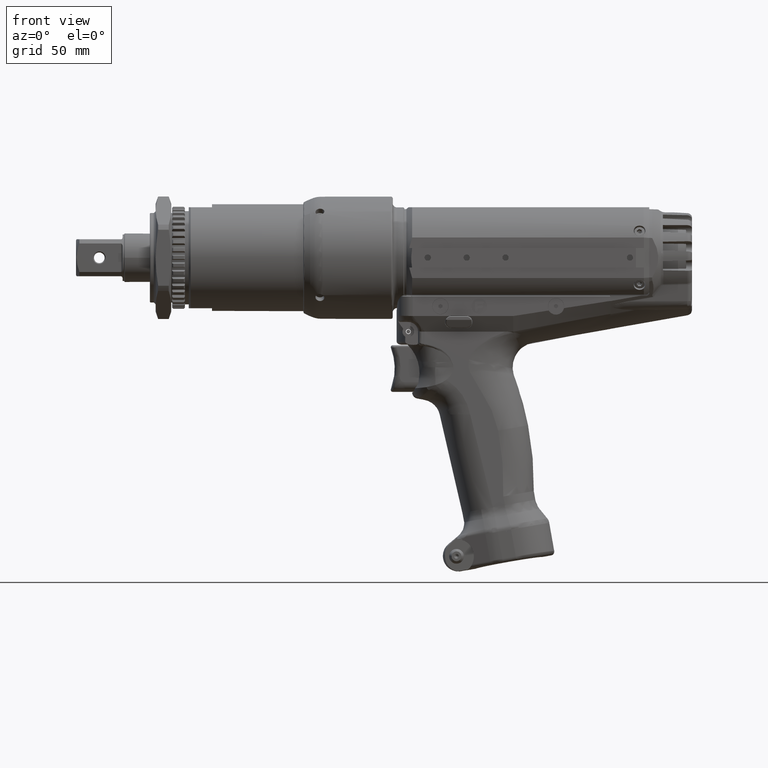
[diagram: clean part render]
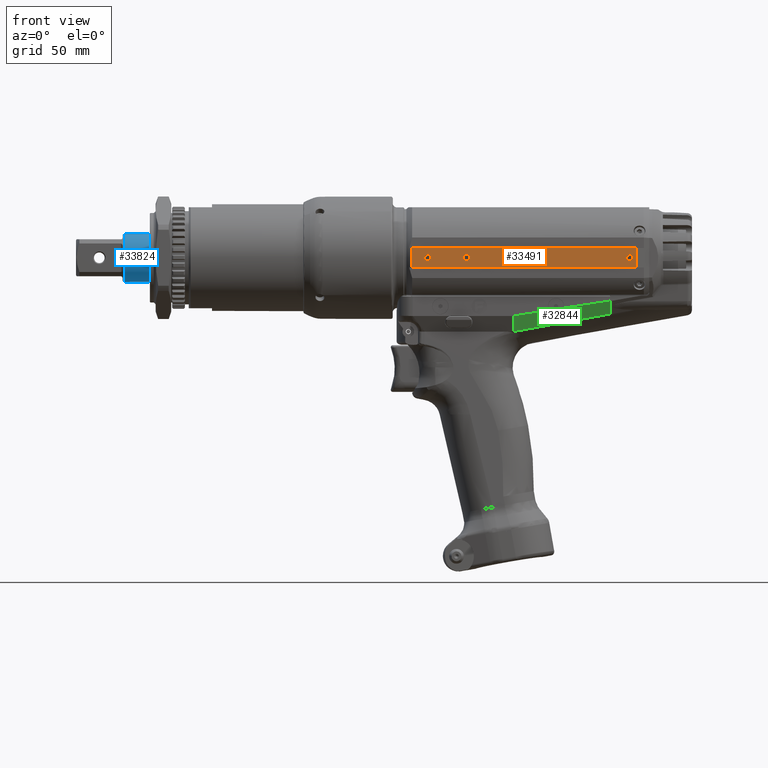
[diagram: same view with three faces highlighted in distinct colors, each labeled with its STEP entity id]
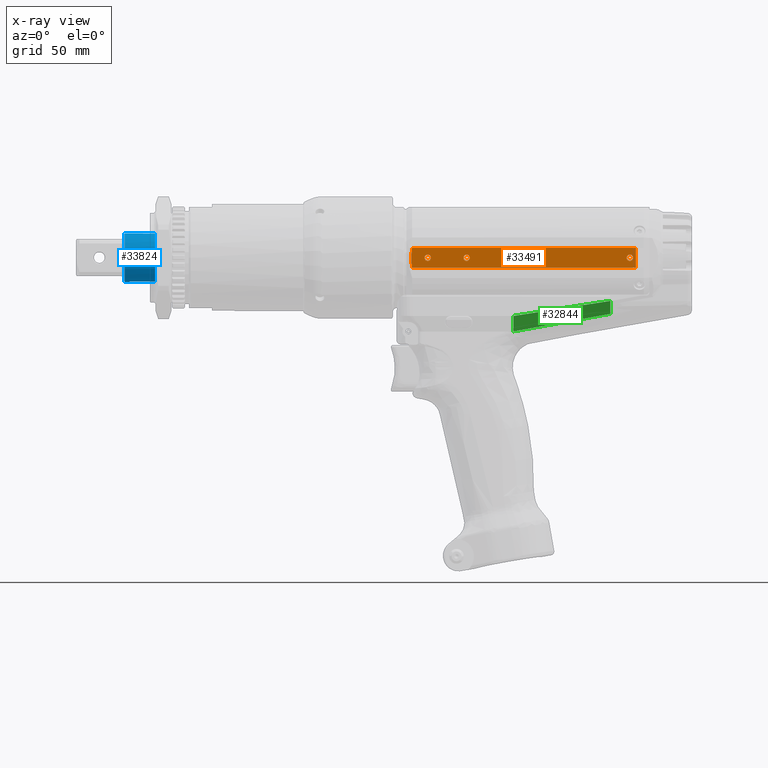
[diagram: x-ray of the same camera — body ghosted, the three highlighted faces saturated]
A machine part, front view with three faces highlighted in distinct colors.
The next image is the same camera in x-ray (body ghosted, the three faces saturated) — at least one of them is partly hidden behind the body in this view.
Their STEP definitions:

[orange] entity #33491 — the highlighted planar face has unit normal (0, -1, 0).
#630=FACE_BOUND('',#9068,.T.);
#631=FACE_BOUND('',#9069,.T.);
#632=FACE_BOUND('',#9070,.T.);
#633=FACE_BOUND('',#9071,.T.);
#1175=(
BOUNDED_CURVE()
B_SPLINE_CURVE(2,(#82943,#82944,#82945),.UNSPECIFIED.,.F.,.F.)
B_SPLINE_CURVE_WITH_KNOTS((3,3),(1.69486973024344,2.8877059647124),
 .UNSPECIFIED.)
CURVE()
GEOMETRIC_REPRESENTATION_ITEM()
RATIONAL_B_SPLINE_CURVE((1.12712429686843,1.14560297585884,1.12712429686843))
REPRESENTATION_ITEM('')
);
#2712=LINE('',#83163,#4695);
#2713=LINE('',#83166,#4696);
#2714=LINE('',#83167,#4697);
#4695=VECTOR('',#41803,10.);
#4696=VECTOR('',#41806,10.);
#4697=VECTOR('',#41807,10.);
#5846=PLANE('',#35904);
#7186=FACE_OUTER_BOUND('',#9067,.T.);
#9067=EDGE_LOOP('',(#26281,#26282,#26283,#26284));
#9068=EDGE_LOOP('',(#26285));
#9069=EDGE_LOOP('',(#26286));
#9070=EDGE_LOOP('',(#26287));
#9071=EDGE_LOOP('',(#26288));
#10559=CIRCLE('',#35857,1.621);
#10560=CIRCLE('',#35859,1.621);
#10561=CIRCLE('',#35861,1.621);
#10562=CIRCLE('',#35863,1.621);
#14338=VERTEX_POINT('',#82938);
#14339=VERTEX_POINT('',#82942);
#14350=VERTEX_POINT('',#82993);
#14351=VERTEX_POINT('',#82997);
#14352=VERTEX_POINT('',#83001);
#14353=VERTEX_POINT('',#83005);
#14374=VERTEX_POINT('',#83161);
#14375=VERTEX_POINT('',#83165);
#18516=EDGE_CURVE('',#14339,#14338,#1175,.T.);
#18533=EDGE_CURVE('',#14350,#14350,#10559,.T.);
#18535=EDGE_CURVE('',#14351,#14351,#10560,.T.);
#18537=EDGE_CURVE('',#14352,#14352,#10561,.T.);
#18539=EDGE_CURVE('',#14353,#14353,#10562,.T.);
#18593=EDGE_CURVE('',#14339,#14374,#2712,.T.);
#18594=EDGE_CURVE('',#14375,#14374,#2713,.T.);
#18595=EDGE_CURVE('',#14338,#14375,#2714,.T.);
#26281=ORIENTED_EDGE('',*,*,#18594,.T.);
#26282=ORIENTED_EDGE('',*,*,#18593,.F.);
#26283=ORIENTED_EDGE('',*,*,#18516,.T.);
#26284=ORIENTED_EDGE('',*,*,#18595,.T.);
#26285=ORIENTED_EDGE('',*,*,#18539,.T.);
#26286=ORIENTED_EDGE('',*,*,#18537,.T.);
#26287=ORIENTED_EDGE('',*,*,#18535,.T.);
#26288=ORIENTED_EDGE('',*,*,#18533,.T.);
#33491=ADVANCED_FACE('',(#7186,#630,#631,#632,#633),#5846,.T.);
#35857=AXIS2_PLACEMENT_3D('',#82994,#41678,#41679);
#35859=AXIS2_PLACEMENT_3D('',#82998,#41683,#41684);
#35861=AXIS2_PLACEMENT_3D('',#83002,#41688,#41689);
#35863=AXIS2_PLACEMENT_3D('',#83006,#41693,#41694);
#35904=AXIS2_PLACEMENT_3D('',#83164,#41804,#41805);
#41678=DIRECTION('center_axis',(-4.0224490751396E-16,1.,-4.16333634234461E-16));
#41679=DIRECTION('ref_axis',(1.,4.02244907513958E-16,-4.96652491747744E-15));
#41683=DIRECTION('center_axis',(-4.0224490751396E-16,1.,-4.16333634234461E-16));
#41684=DIRECTION('ref_axis',(1.,4.02244907513958E-16,-4.96652491747744E-15));
#41688=DIRECTION('center_axis',(-4.0224490751396E-16,1.,-4.16333634234461E-16));
#41689=DIRECTION('ref_axis',(1.,4.02244907513958E-16,-4.96652491747744E-15));
#41693=DIRECTION('center_axis',(-4.0224490751396E-16,1.,-4.16333634234461E-16));
#41694=DIRECTION('ref_axis',(1.,4.02244907513958E-16,-4.96652491747744E-15));
#41803=DIRECTION('',(1.,4.02244907513958E-16,-4.96652491747744E-15));
#41804=DIRECTION('center_axis',(4.0224490751396E-16,-1.,4.16333634234461E-16));
#41805=DIRECTION('ref_axis',(-4.96652491747744E-15,-4.16333634234463E-16,
-1.));
#41806=DIRECTION('',(4.96652491747744E-15,4.16333634234463E-16,1.));
#41807=DIRECTION('',(1.,4.02244907513958E-16,-4.96652491747744E-15));
#82938=CARTESIAN_POINT('',(3.95084971874749,-27.5,-4.99999999999996));
#82942=CARTESIAN_POINT('',(3.95084971874754,-27.5,5.00000000000005));
#82943=CARTESIAN_POINT('Ctrl Pts',(3.95084971874754,-27.5,5.00000000000005));
#82944=CARTESIAN_POINT('Ctrl Pts',(3.05642252774761,-27.5,3.99680288865056E-14));
#82945=CARTESIAN_POINT('Ctrl Pts',(3.95084971874749,-27.5,-4.99999999999996));
#82993=CARTESIAN_POINT('',(114.379,-27.4999999999999,-4.95953109141999E-13));
#82994=CARTESIAN_POINT('Origin',(116.,-27.4999999999999,-5.01820807130571E-13));
#82997=CARTESIAN_POINT('',(30.3790000000001,-27.5,-7.40683597844394E-14));
#82998=CARTESIAN_POINT('Origin',(32.0000000000001,-27.5,-8.43769498715119E-14));
#83001=CARTESIAN_POINT('',(10.3790000000001,-27.5,2.36312663825744E-14));
#83002=CARTESIAN_POINT('Origin',(12.0000000000001,-27.5,1.33226762955019E-14));
#83005=CARTESIAN_POINT('',(50.3790000000001,-27.5,-1.76208878049954E-13));
#83006=CARTESIAN_POINT('Origin',(52.0000000000001,-27.5,-1.82076576038526E-13));
#83161=CARTESIAN_POINT('',(119.131306451364,-27.4999999999999,4.99999999999949));
#83163=CARTESIAN_POINT('',(-11.4999999999998,-27.5,5.00000000000013));
#83164=CARTESIAN_POINT('Origin',(-11.4999999999998,-27.5,5.00000000000013));
#83165=CARTESIAN_POINT('',(119.131306451364,-27.4999999999999,-5.00000000000052));
#83166=CARTESIAN_POINT('',(119.131306451364,-27.4999999999999,2.49999999999948));
#83167=CARTESIAN_POINT('',(-11.4999999999999,-27.5,-4.99999999999988));

[blue] entity #33824 — the highlighted cylindrical surface (bore or boss wall) has radius 12.5 mm, axis along (1, -0, -0).
#918=CYLINDRICAL_SURFACE('',#36471,12.5);
#2940=LINE('',#87673,#4923);
#4923=VECTOR('',#43167,12.5);
#7519=FACE_OUTER_BOUND('',#9412,.T.);
#9412=EDGE_LOOP('',(#28191,#28192,#28193,#28194,#28195));
#10844=CIRCLE('',#36470,12.5);
#10845=CIRCLE('',#36472,12.5);
#10846=CIRCLE('',#36473,12.5);
#14826=VERTEX_POINT('',#87669);
#14827=VERTEX_POINT('',#87672);
#14828=VERTEX_POINT('',#87674);
#19408=EDGE_CURVE('',#14826,#14826,#10844,.T.);
#19409=EDGE_CURVE('',#14826,#14827,#2940,.T.);
#19410=EDGE_CURVE('',#14827,#14828,#10845,.T.);
#19411=EDGE_CURVE('',#14828,#14827,#10846,.T.);
#28191=ORIENTED_EDGE('',*,*,#19408,.F.);
#28192=ORIENTED_EDGE('',*,*,#19409,.T.);
#28193=ORIENTED_EDGE('',*,*,#19410,.T.);
#28194=ORIENTED_EDGE('',*,*,#19411,.T.);
#28195=ORIENTED_EDGE('',*,*,#19409,.F.);
#33824=ADVANCED_FACE('',(#7519),#918,.T.);
#36470=AXIS2_PLACEMENT_3D('',#87670,#43163,#43164);
#36471=AXIS2_PLACEMENT_3D('',#87671,#43165,#43166);
#36472=AXIS2_PLACEMENT_3D('',#87675,#43168,#43169);
#36473=AXIS2_PLACEMENT_3D('',#87676,#43170,#43171);
#43163=DIRECTION('center_axis',(1.,-1.08425849883705E-15,-9.33704382590395E-15));
#43164=DIRECTION('ref_axis',(9.33704382590396E-15,6.44970188368177E-15,
1.));
#43165=DIRECTION('center_axis',(1.,-1.08425849883705E-15,-9.33704382590395E-15));
#43166=DIRECTION('ref_axis',(1.20672317875173E-15,1.,-6.44970188368178E-15));
#43167=DIRECTION('',(-1.,1.08425849883705E-15,9.33704382590395E-15));
#43168=DIRECTION('center_axis',(1.,-1.08425849883705E-15,-9.33704382590395E-15));
#43169=DIRECTION('ref_axis',(9.33704382590396E-15,6.44970188368177E-15,
1.));
#43170=DIRECTION('center_axis',(1.,-1.08425849883705E-15,-9.33704382590395E-15));
#43171=DIRECTION('ref_axis',(9.33704382590396E-15,6.44970188368177E-15,
1.));
#87669=CARTESIAN_POINT('',(-128.35,-12.4999999999992,7.69861538051497E-13));
#87670=CARTESIAN_POINT('Origin',(-128.35,7.5915829577373E-13,6.92779167366098E-13));
#87671=CARTESIAN_POINT('Origin',(-136.175,7.6764261852713E-13,7.63833440942108E-13));
#87672=CARTESIAN_POINT('',(-144.,-12.4999999999992,9.15986273926894E-13));
#87673=CARTESIAN_POINT('',(-136.175,-12.4999999999992,8.42923905989196E-13));
#87674=CARTESIAN_POINT('',(-144.,8.55217406327618E-13,12.5000000000008));
#87675=CARTESIAN_POINT('Origin',(-144.,7.7612694128053E-13,8.34887714518118E-13));
#87676=CARTESIAN_POINT('Origin',(-144.,7.7612694128053E-13,8.34887714518118E-13));

[green] entity #32844 — the highlighted face is a freeform B-spline surface patch.
#2028=LINE('',#57909,#4011);
#2029=LINE('',#57911,#4012);
#2030=LINE('',#57912,#4013);
#2031=LINE('',#57914,#4014);
#2032=LINE('',#57915,#4015);
#4011=VECTOR('',#39249,10.);
#4012=VECTOR('',#39250,10.);
#4013=VECTOR('',#39251,10.);
#4014=VECTOR('',#39252,10.);
#4015=VECTOR('',#39253,10.);
#6539=FACE_OUTER_BOUND('',#8359,.T.);
#8359=EDGE_LOOP('',(#22745,#22746,#22747,#22748,#22749,#22750));
#11569=B_SPLINE_CURVE_WITH_KNOTS('',3,(#54578,#54579,#54580,#54581,#54582,
#54583,#54584,#54585,#54586,#54587,#54588,#54589,#54590,#54591,#54592,#54593,
#54594,#54595,#54596,#54597,#54598,#54599,#54600,#54601,#54602,#54603),
 .UNSPECIFIED.,.F.,.F.,(4,2,2,2,2,2,2,2,2,2,2,2,4),(3.07917090915807E-10,
0.159742356684289,0.298196904261383,0.403124622867127,0.476381305538727,
0.512680377399742,0.538473871800051,0.564525277660425,0.602070124446369,
0.679700985917106,0.793520479498088,0.936382555469717,1.0862276020455),
 .UNSPECIFIED.);
#13286=VERTEX_POINT('',#54575);
#13287=VERTEX_POINT('',#54577);
#13291=VERTEX_POINT('',#54692);
#13358=VERTEX_POINT('',#57908);
#13359=VERTEX_POINT('',#57910);
#13360=VERTEX_POINT('',#57913);
#16857=EDGE_CURVE('',#13287,#13286,#11569,.T.);
#16964=EDGE_CURVE('',#13358,#13287,#2028,.T.);
#16965=EDGE_CURVE('',#13286,#13359,#2029,.T.);
#16966=EDGE_CURVE('',#13291,#13359,#2030,.T.);
#16967=EDGE_CURVE('',#13291,#13360,#2031,.T.);
#16968=EDGE_CURVE('',#13360,#13358,#2032,.T.);
#22745=ORIENTED_EDGE('',*,*,#16964,.T.);
#22746=ORIENTED_EDGE('',*,*,#16857,.T.);
#22747=ORIENTED_EDGE('',*,*,#16965,.T.);
#22748=ORIENTED_EDGE('',*,*,#16966,.F.);
#22749=ORIENTED_EDGE('',*,*,#16967,.T.);
#22750=ORIENTED_EDGE('',*,*,#16968,.T.);
#30518=B_SPLINE_SURFACE_WITH_KNOTS('',3,3,((#57892,#57893,#57894,#57895),
(#57896,#57897,#57898,#57899),(#57900,#57901,#57902,#57903),(#57904,#57905,
#57906,#57907)),.UNSPECIFIED.,.F.,.F.,.F.,(4,4),(4,4),(-11.2472218791675,
0.),(0.,50.7123129155481),.UNSPECIFIED.);
#32844=ADVANCED_FACE('',(#6539),#30518,.F.);
#39249=DIRECTION('',(-0.988108075478421,2.24857721306744E-11,-0.153760954648214));
#39250=DIRECTION('',(-0.988108075996642,-9.23100040172325E-17,-0.153760951317993));
#39251=DIRECTION('',(7.10837701900609E-12,-0.490261239644847,0.871575537117637));
#39252=DIRECTION('',(0.98380899082009,0.00194793026394758,0.179209584423496));
#39253=DIRECTION('',(1.68792055283529E-11,-0.567497720762026,0.823374967393292));
#54575=CARTESIAN_POINT('',(74.3323438612595,-19.4999999865478,-27.1472769902851));
#54577=CARTESIAN_POINT('',(82.1467135988757,-19.5000000003278,-25.9312713461318));
#54578=CARTESIAN_POINT('Ctrl Pts',(82.1467136001099,-19.4999999984419,-25.9312713452751));
#54579=CARTESIAN_POINT('Ctrl Pts',(82.0460755701648,-19.2305679285811,-26.3793868054794));
#54580=CARTESIAN_POINT('Ctrl Pts',(81.8711595047063,-18.9742959185961,-26.8185077575376));
#54581=CARTESIAN_POINT('Ctrl Pts',(81.4016363909986,-18.5467767817304,-27.5815525387252));
#54582=CARTESIAN_POINT('Ctrl Pts',(81.1272055572517,-18.3698959352078,-27.9110205763852));
#54583=CARTESIAN_POINT('Ctrl Pts',(80.5490588849611,-18.1152374585478,-28.4167925530656));
#54584=CARTESIAN_POINT('Ctrl Pts',(80.2709667588723,-18.0249538077742,-28.6086493437291));
#54585=CARTESIAN_POINT('Ctrl Pts',(79.75579655652,-17.9115006478225,-28.8777282380305));
#54586=CARTESIAN_POINT('Ctrl Pts',(79.5335016864703,-17.8767079362074,-28.9711009735055));
#54587=CARTESIAN_POINT('Ctrl Pts',(79.1884049089637,-17.8436262765564,-29.0822326481226));
#54588=CARTESIAN_POINT('Ctrl Pts',(79.0723599345938,-17.8358125695227,-29.114252341225));
#54589=CARTESIAN_POINT('Ctrl Pts',(78.8714503324517,-17.827899422591,-29.1605780834995));
#54590=CARTESIAN_POINT('Ctrl Pts',(78.7873984888939,-17.8262264249072,-29.1773017702811));
#54591=CARTESIAN_POINT('Ctrl Pts',(78.6174907872211,-17.8261100909534,-29.2057935325393));
#54592=CARTESIAN_POINT('Ctrl Pts',(78.5317265112551,-17.8276992789707,-29.217493406408));
#54593=CARTESIAN_POINT('Ctrl Pts',(78.3217079489876,-17.8355747225929,-29.2396400483469));
#54594=CARTESIAN_POINT('Ctrl Pts',(78.1974199286556,-17.8436143314486,-29.2472299193689));
#54595=CARTESIAN_POINT('Ctrl Pts',(77.8163346318853,-17.8784523980437,-29.2537940044747));
#54596=CARTESIAN_POINT('Ctrl Pts',(77.5615430956766,-17.9159459253616,-29.2348896393286));
#54597=CARTESIAN_POINT('Ctrl Pts',(76.945713979081,-18.0400210657594,-29.1338398824477));
#54598=CARTESIAN_POINT('Ctrl Pts',(76.5953352689175,-18.1403341552111,-29.0271491172121));
#54599=CARTESIAN_POINT('Ctrl Pts',(75.8570704361293,-18.4143472235919,-28.6976772237592));
#54600=CARTESIAN_POINT('Ctrl Pts',(75.4874974881887,-18.5982726827569,-28.4546077222353));
#54601=CARTESIAN_POINT('Ctrl Pts',(74.831448639275,-19.0172545123326,-27.8680552973393));
#54602=CARTESIAN_POINT('Ctrl Pts',(74.5517285850229,-19.253144370434,-27.5219970301283));
#54603=CARTESIAN_POINT('Ctrl Pts',(74.3323438603087,-19.4999999744021,-27.1472769828405));
#54692=CARTESIAN_POINT('',(55.9999999999146,-15.0000000000407,-37.999999999654));
#57892=CARTESIAN_POINT('Ctrl Pts',(106.00000000001,-19.4999999999999,-22.2194262738944));
#57893=CARTESIAN_POINT('Ctrl Pts',(89.333417369148,-19.5,-24.8129377723228));
#57894=CARTESIAN_POINT('Ctrl Pts',(72.6665326453266,-19.5,-27.4064962798819));
#57895=CARTESIAN_POINT('Ctrl Pts',(55.9999999999799,-19.5,-29.9999999999905));
#57896=CARTESIAN_POINT('Ctrl Pts',(106.000000000007,-17.9670001954914,-24.4436354960068));
#57897=CARTESIAN_POINT('Ctrl Pts',(89.333360070069,-17.9780001883252,-27.1846425031431));
#57898=CARTESIAN_POINT('Ctrl Pts',(72.6666165755165,-17.9889999874553,-29.9256630289686));
#57899=CARTESIAN_POINT('Ctrl Pts',(55.9999999999581,-18.0000000000281,-32.666666666555));
#57900=CARTESIAN_POINT('Ctrl Pts',(106.000000000004,-16.4340003909829,-26.6678447181192));
#57901=CARTESIAN_POINT('Ctrl Pts',(89.33330277099,-16.4560003766504,-29.5563472339637));
#57902=CARTESIAN_POINT('Ctrl Pts',(72.6667005057067,-16.4779999749106,-32.4448297780554));
#57903=CARTESIAN_POINT('Ctrl Pts',(55.9999999999359,-16.5000000000563,-35.3333333331196));
#57904=CARTESIAN_POINT('Ctrl Pts',(106.000000000001,-14.9010005864743,-28.8920539402316));
#57905=CARTESIAN_POINT('Ctrl Pts',(89.333245471911,-14.9340005649757,-31.9280519647842));
#57906=CARTESIAN_POINT('Ctrl Pts',(72.6667844358968,-14.966999962366,-34.963996527142));
#57907=CARTESIAN_POINT('Ctrl Pts',(55.9999999999143,-15.0000000000846,-37.9999999996841));
#57908=CARTESIAN_POINT('',(106.00000000001,-19.4999999999999,-22.2194262738944));
#57909=CARTESIAN_POINT('',(106.00000000001,-19.4999999999999,-22.2194262738944));
#57910=CARTESIAN_POINT('',(55.9999999999799,-19.5,-29.9999999999905));
#57911=CARTESIAN_POINT('',(74.3323434441078,-19.5,-27.1472770678212));
#57912=CARTESIAN_POINT('',(55.9999999999146,-15.0000000000407,-37.999999999654));
#57913=CARTESIAN_POINT('',(105.999999999912,-14.9010005867998,-28.8920539405219));
#57914=CARTESIAN_POINT('',(55.9999999999194,-15.0000000000865,-37.9999999996797));
#57915=CARTESIAN_POINT('',(105.999999999873,-14.9010005864746,-28.8920539402549));